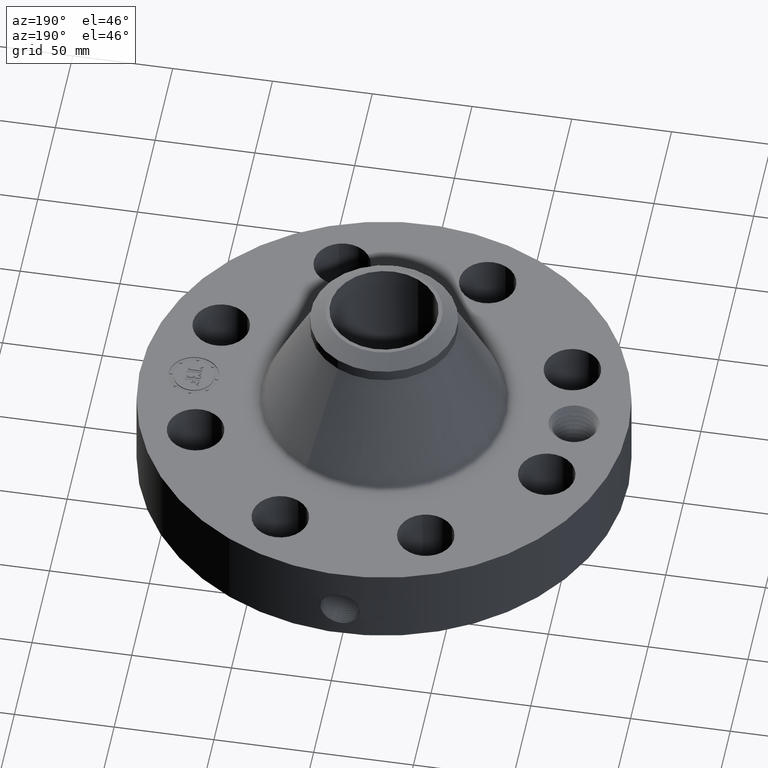
[diagram: clean part render]
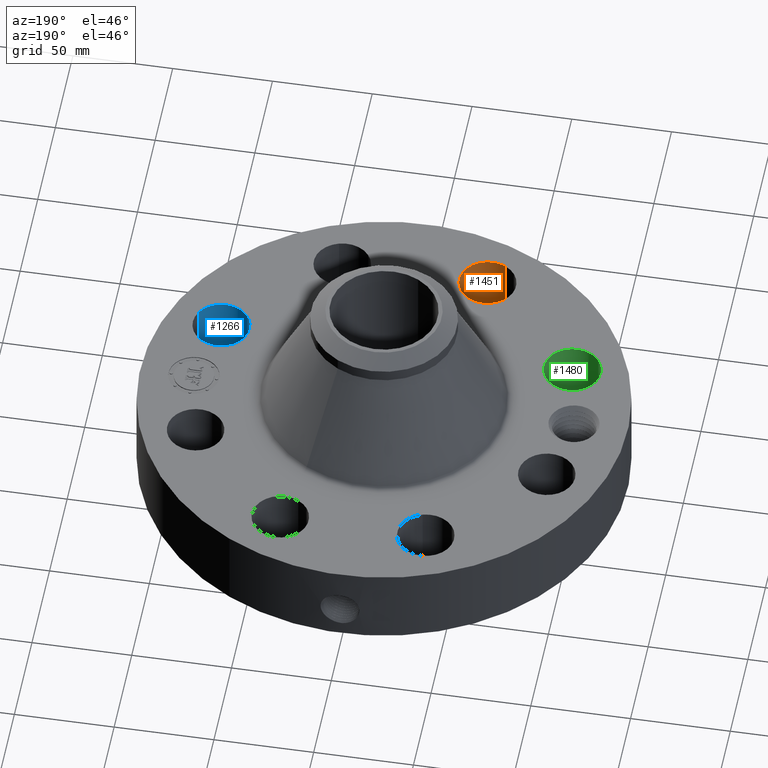
[diagram: same view with three faces highlighted in distinct colors, each labeled with its STEP entity id]
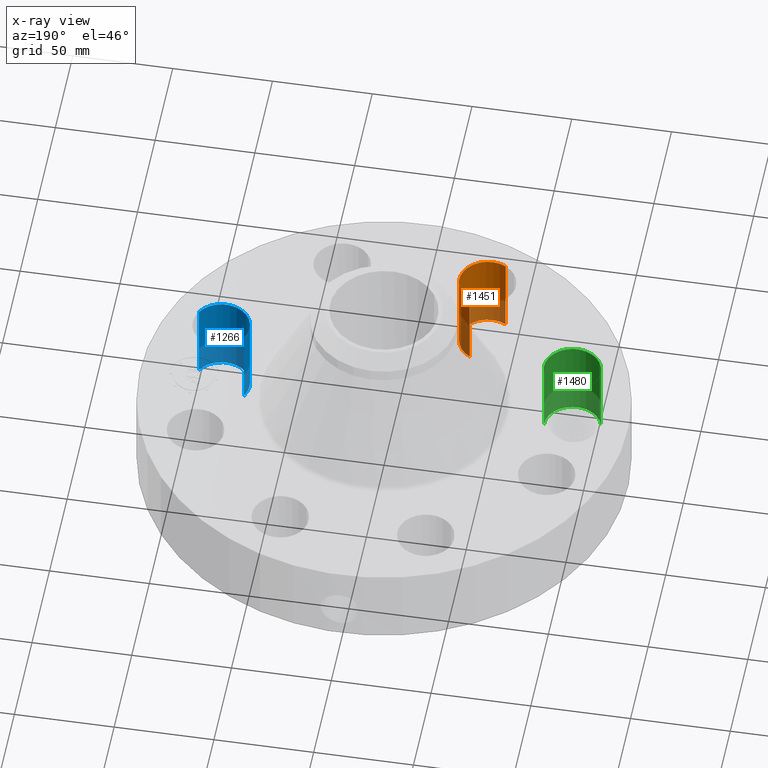
[diagram: x-ray of the same camera — body ghosted, the three highlighted faces saturated]
A machine part, auxiliary view with three faces highlighted in distinct colors.
The next image is the same camera in x-ray (body ghosted, the three faces saturated) — at least one of them is partly hidden behind the body in this view.
Their STEP definitions:

[orange] entity #1451 — the highlighted cylindrical surface (edge-blend (fillet) strip) has radius 14.224 mm, axis along (0, -0, -1).
#295=AXIS2_PLACEMENT_3D('Circle Axis2P3D',#293,#294,$) ;
#638=AXIS2_PLACEMENT_3D('Circle Axis2P3D',#636,#637,$) ;
#1433=AXIS2_PLACEMENT_3D('Cylinder Axis2P3D',#1430,#1431,#1432) ;
#293=CARTESIAN_POINT('Axis2P3D Location',(-1.43506287137,-3.46454824693,0.250000000001)) ;
#297=CARTESIAN_POINT('Vertex',(-1.16658456976,-2.97310201227,0.250000000001)) ;
#299=CARTESIAN_POINT('Vertex',(-1.70354117299,-3.95599448159,0.250000000001)) ;
#631=CARTESIAN_POINT('Vertex',(-1.70354117299,-3.95599448159,1.87000000001)) ;
#633=CARTESIAN_POINT('Vertex',(-1.16658456976,-2.97310201227,1.87000000001)) ;
#636=CARTESIAN_POINT('Axis2P3D Location',(-1.43506287137,-3.46454824693,1.87000000001)) ;
#1430=CARTESIAN_POINT('Axis2P3D Location',(-1.43506287137,-3.46454824693,1.86606299213)) ;
#1435=CARTESIAN_POINT('Line Origine',(-1.16658456976,-2.97310201227,1.06)) ;
#1440=CARTESIAN_POINT('Line Origine',(-1.70354117299,-3.95599448159,1.06)) ;
#294=DIRECTION('Axis2P3D Direction',(0.,0.,-0.0393700787402)) ;
#637=DIRECTION('Axis2P3D Direction',(0.,0.,-0.0393700787402)) ;
#1431=DIRECTION('Axis2P3D Direction',(0.,-0.,-0.0393700787402)) ;
#1432=DIRECTION('Axis2P3D XDirection',(-0.0188750212049,-0.0345504945626,0.)) ;
#1436=DIRECTION('Vector Direction',(0.,0.,-0.0393700787402)) ;
#1441=DIRECTION('Vector Direction',(0.,0.,-0.0393700787402)) ;
#1437=VECTOR('Line Direction',#1436,0.0393700787402) ;
#1442=VECTOR('Line Direction',#1441,0.0393700787402) ;
#1446=ORIENTED_EDGE('',*,*,#1439,.F.) ;
#1447=ORIENTED_EDGE('',*,*,#301,.T.) ;
#1448=ORIENTED_EDGE('',*,*,#1444,.T.) ;
#1449=ORIENTED_EDGE('',*,*,#640,.F.) ;
#1451=ADVANCED_FACE('PartBody',(#1450),#1434,.F.) ;
#296=CIRCLE('generated circle',#295,0.560000000002) ;
#639=CIRCLE('generated circle',#638,0.560000000002) ;
#1434=CYLINDRICAL_SURFACE('generated cylinder',#1433,0.560000000002) ;
#301=EDGE_CURVE('',#298,#300,#296,.T.) ;
#640=EDGE_CURVE('',#634,#632,#639,.T.) ;
#1439=EDGE_CURVE('',#298,#634,#1438,.F.) ;
#1444=EDGE_CURVE('',#300,#632,#1443,.F.) ;
#1445=EDGE_LOOP('',(#1446,#1447,#1448,#1449)) ;
#1450=FACE_OUTER_BOUND('',#1445,.T.) ;
#1438=LINE('Line',#1435,#1437) ;
#1443=LINE('Line',#1440,#1442) ;
#298=VERTEX_POINT('',#297) ;
#300=VERTEX_POINT('',#299) ;
#632=VERTEX_POINT('',#631) ;
#634=VERTEX_POINT('',#633) ;

[blue] entity #1266 — the highlighted cylindrical surface (edge-blend (fillet) strip) has radius 14.224 mm, axis along (0, -0, -1).
#241=AXIS2_PLACEMENT_3D('Circle Axis2P3D',#239,#240,$) ;
#584=AXIS2_PLACEMENT_3D('Circle Axis2P3D',#582,#583,$) ;
#1248=AXIS2_PLACEMENT_3D('Cylinder Axis2P3D',#1245,#1246,#1247) ;
#239=CARTESIAN_POINT('Axis2P3D Location',(3.46454824693,-1.43506287137,0.250000000001)) ;
#243=CARTESIAN_POINT('Vertex',(3.95599448159,-1.70354117299,0.250000000001)) ;
#245=CARTESIAN_POINT('Vertex',(2.97310201227,-1.16658456976,0.250000000001)) ;
#577=CARTESIAN_POINT('Vertex',(2.97310201227,-1.16658456976,1.87000000001)) ;
#579=CARTESIAN_POINT('Vertex',(3.95599448159,-1.70354117299,1.87000000001)) ;
#582=CARTESIAN_POINT('Axis2P3D Location',(3.46454824693,-1.43506287137,1.87000000001)) ;
#1245=CARTESIAN_POINT('Axis2P3D Location',(3.46454824693,-1.43506287137,1.86606299213)) ;
#1250=CARTESIAN_POINT('Line Origine',(3.95599448159,-1.70354117299,1.06)) ;
#1255=CARTESIAN_POINT('Line Origine',(2.97310201227,-1.16658456976,1.06)) ;
#240=DIRECTION('Axis2P3D Direction',(0.,0.,-0.0393700787402)) ;
#583=DIRECTION('Axis2P3D Direction',(0.,0.,-0.0393700787402)) ;
#1246=DIRECTION('Axis2P3D Direction',(0.,-0.,-0.0393700787402)) ;
#1247=DIRECTION('Axis2P3D XDirection',(-0.0345504945626,0.0188750212049,0.)) ;
#1251=DIRECTION('Vector Direction',(0.,0.,-0.0393700787402)) ;
#1256=DIRECTION('Vector Direction',(0.,0.,-0.0393700787402)) ;
#1252=VECTOR('Line Direction',#1251,0.0393700787402) ;
#1257=VECTOR('Line Direction',#1256,0.0393700787402) ;
#1261=ORIENTED_EDGE('',*,*,#1254,.F.) ;
#1262=ORIENTED_EDGE('',*,*,#247,.T.) ;
#1263=ORIENTED_EDGE('',*,*,#1259,.T.) ;
#1264=ORIENTED_EDGE('',*,*,#586,.F.) ;
#1266=ADVANCED_FACE('PartBody',(#1265),#1249,.F.) ;
#242=CIRCLE('generated circle',#241,0.560000000002) ;
#585=CIRCLE('generated circle',#584,0.560000000002) ;
#1249=CYLINDRICAL_SURFACE('generated cylinder',#1248,0.560000000002) ;
#247=EDGE_CURVE('',#244,#246,#242,.T.) ;
#586=EDGE_CURVE('',#580,#578,#585,.T.) ;
#1254=EDGE_CURVE('',#244,#580,#1253,.F.) ;
#1259=EDGE_CURVE('',#246,#578,#1258,.F.) ;
#1260=EDGE_LOOP('',(#1261,#1262,#1263,#1264)) ;
#1265=FACE_OUTER_BOUND('',#1260,.T.) ;
#1253=LINE('Line',#1250,#1252) ;
#1258=LINE('Line',#1255,#1257) ;
#244=VERTEX_POINT('',#243) ;
#246=VERTEX_POINT('',#245) ;
#578=VERTEX_POINT('',#577) ;
#580=VERTEX_POINT('',#579) ;

[green] entity #1480 — the highlighted cylindrical surface (edge-blend (fillet) strip) has radius 14.224 mm, axis along (-0, 0, -1).
#313=AXIS2_PLACEMENT_3D('Circle Axis2P3D',#311,#312,$) ;
#656=AXIS2_PLACEMENT_3D('Circle Axis2P3D',#654,#655,$) ;
#1462=AXIS2_PLACEMENT_3D('Cylinder Axis2P3D',#1459,#1460,#1461) ;
#311=CARTESIAN_POINT('Axis2P3D Location',(-3.46454824693,-1.43506287137,0.250000000001)) ;
#315=CARTESIAN_POINT('Vertex',(-2.92720045414,-1.27740073393,0.250000000001)) ;
#317=CARTESIAN_POINT('Vertex',(-4.00189603972,-1.59272500882,0.250000000001)) ;
#649=CARTESIAN_POINT('Vertex',(-4.00189603972,-1.59272500882,1.87000000001)) ;
#651=CARTESIAN_POINT('Vertex',(-2.92720045414,-1.27740073393,1.87000000001)) ;
#654=CARTESIAN_POINT('Axis2P3D Location',(-3.46454824693,-1.43506287137,1.87000000001)) ;
#1459=CARTESIAN_POINT('Axis2P3D Location',(-3.46454824693,-1.43506287137,1.86606299213)) ;
#1464=CARTESIAN_POINT('Line Origine',(-2.92720045414,-1.27740073393,1.06)) ;
#1469=CARTESIAN_POINT('Line Origine',(-4.00189603972,-1.59272500882,1.06)) ;
#312=DIRECTION('Axis2P3D Direction',(0.,0.,-0.0393700787402)) ;
#655=DIRECTION('Axis2P3D Direction',(0.,0.,-0.0393700787402)) ;
#1460=DIRECTION('Axis2P3D Direction',(-0.,0.,-0.0393700787402)) ;
#1461=DIRECTION('Axis2P3D XDirection',(-0.0377775444876,-0.0110842335096,0.)) ;
#1465=DIRECTION('Vector Direction',(0.,0.,-0.0393700787402)) ;
#1470=DIRECTION('Vector Direction',(0.,0.,-0.0393700787402)) ;
#1466=VECTOR('Line Direction',#1465,0.0393700787402) ;
#1471=VECTOR('Line Direction',#1470,0.0393700787402) ;
#1475=ORIENTED_EDGE('',*,*,#1468,.F.) ;
#1476=ORIENTED_EDGE('',*,*,#319,.T.) ;
#1477=ORIENTED_EDGE('',*,*,#1473,.T.) ;
#1478=ORIENTED_EDGE('',*,*,#658,.F.) ;
#1480=ADVANCED_FACE('PartBody',(#1479),#1463,.F.) ;
#314=CIRCLE('generated circle',#313,0.560000000002) ;
#657=CIRCLE('generated circle',#656,0.560000000002) ;
#1463=CYLINDRICAL_SURFACE('generated cylinder',#1462,0.560000000002) ;
#319=EDGE_CURVE('',#316,#318,#314,.T.) ;
#658=EDGE_CURVE('',#652,#650,#657,.T.) ;
#1468=EDGE_CURVE('',#316,#652,#1467,.F.) ;
#1473=EDGE_CURVE('',#318,#650,#1472,.F.) ;
#1474=EDGE_LOOP('',(#1475,#1476,#1477,#1478)) ;
#1479=FACE_OUTER_BOUND('',#1474,.T.) ;
#1467=LINE('Line',#1464,#1466) ;
#1472=LINE('Line',#1469,#1471) ;
#316=VERTEX_POINT('',#315) ;
#318=VERTEX_POINT('',#317) ;
#650=VERTEX_POINT('',#649) ;
#652=VERTEX_POINT('',#651) ;